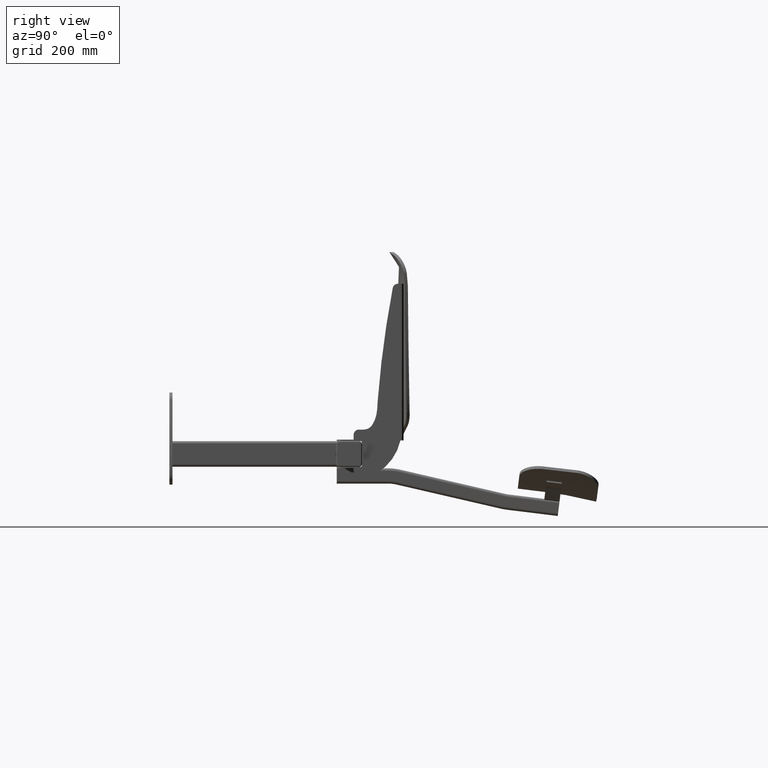
[diagram: clean part render]
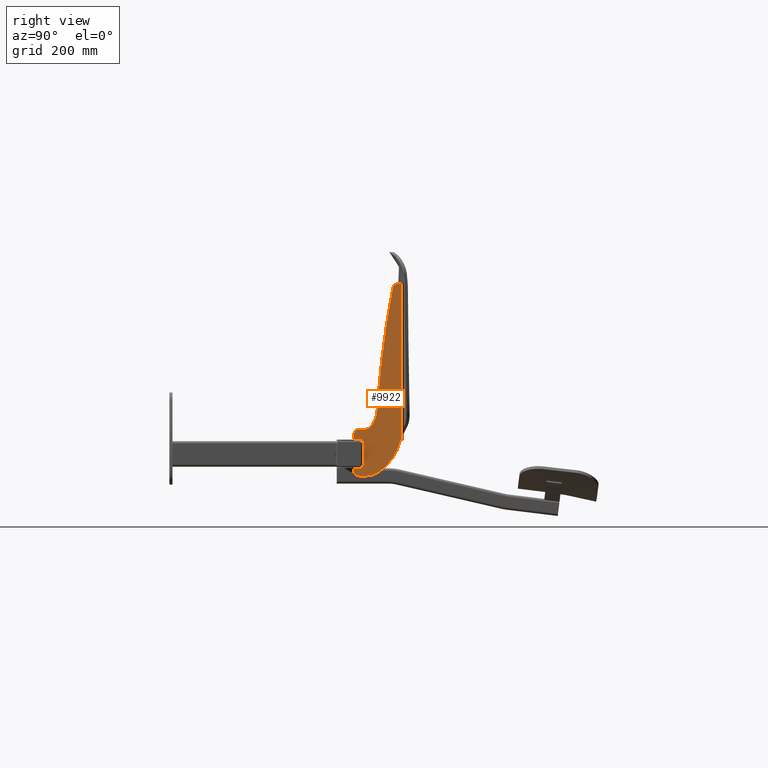
[diagram: same view with one face highlighted and labeled with its STEP entity id]
A machine part, right view. The second image highlights one B-rep face of the part: STEP entity #9922.
In plain terms, the highlighted planar face has unit normal (1, 0, 0).
Its self-contained STEP definition (entity closure, byte-faithful):
#3565 = AXIS2_PLACEMENT_3D ( 'NONE', #15884, #15888, #15889 ) ;
#3684 = FACE_OUTER_BOUND ( 'NONE', #19537, .T. ) ;
#3911 = CARTESIAN_POINT ( 'NONE',  ( 188.5000000000000000, 768.8487700016353300, 42.09000911109884400 ) ) ;
#3912 = DIRECTION ( 'NONE',  ( 1.000000000000000000, -0.0000000000000000000, -0.0000000000000000000 ) ) ;
#3913 = DIRECTION ( 'NONE',  ( 0.0000000000000000000, 0.0000000000000000000, 1.000000000000000000 ) ) ;
#3920 = CARTESIAN_POINT ( 'NONE',  ( 188.5000000000000000, 1965.136893570438800, -52.22184278584374100 ) ) ;
#3921 = DIRECTION ( 'NONE',  ( -1.000000000000000000, 0.0000000000000000000, 0.0000000000000000000 ) ) ;
#3922 = DIRECTION ( 'NONE',  ( 0.0000000000000000000, 0.0000000000000000000, -1.000000000000000000 ) ) ;
#3923 = DIRECTION ( 'NONE',  ( 0.0000000000000000000, -1.000000000000000000, 0.0000000000000000000 ) ) ;
#3924 = CARTESIAN_POINT ( 'NONE',  ( 188.5000000000000000, -94.90603982662021600, 88.48643675972323300 ) ) ;
#3925 = DIRECTION ( 'NONE',  ( 1.000000000000000000, -0.0000000000000000000, -0.0000000000000000000 ) ) ;
#3926 = DIRECTION ( 'NONE',  ( 0.0000000000000000000, 0.0000000000000000000, -1.000000000000000000 ) ) ;
#3928 = CARTESIAN_POINT ( 'NONE',  ( 188.5000000000000000, 17.99999999999996100, 330.0000000000000000 ) ) ;
#3929 = CARTESIAN_POINT ( 'NONE',  ( 188.5000000000000000, 10.25815059093826400, 320.0000000000000000 ) ) ;
#3930 = DIRECTION ( 'NONE',  ( -1.000000000000000000, -0.0000000000000000000, -0.0000000000000000000 ) ) ;
#3931 = DIRECTION ( 'NONE',  ( 0.0000000000000000000, 0.0000000000000000000, 1.000000000000000000 ) ) ;
#3997 = CARTESIAN_POINT ( 'NONE',  ( 188.5000000000000000, -76.00000000000001400, 35.00000000000000700 ) ) ;
#3999 = CARTESIAN_POINT ( 'NONE',  ( 188.5000000000000000, 10.25815059093826400, 330.0000000000000000 ) ) ;
#4000 = CARTESIAN_POINT ( 'NONE',  ( 188.5000000000000000, -56.52131254699094100, 45.00000000000002100 ) ) ;
#4001 = CARTESIAN_POINT ( 'NONE',  ( 188.5000000000000000, -62.00000000000000000, -30.49999999999999300 ) ) ;
#4003 = CARTESIAN_POINT ( 'NONE',  ( 188.5000000000000000, -56.99999999999999300, 20.50000000000000400 ) ) ;
#4155 = CARTESIAN_POINT ( 'NONE',  ( 188.5000000000000000, -66.00000000000000000, -45.49999999999999300 ) ) ;
#4156 = CARTESIAN_POINT ( 'NONE',  ( 188.5000000000000000, -50.76586166187402700, -45.49999999999999300 ) ) ;
#4158 = CARTESIAN_POINT ( 'NONE',  ( 188.5000000000000000, 15.49999999999940300, 24.00000000000002100 ) ) ;
#4159 = CARTESIAN_POINT ( 'NONE',  ( 188.5000000000000000, -29.85772430000088900, -39.60058345625546400 ) ) ;
#4161 = CARTESIAN_POINT ( 'NONE',  ( 188.5000000000000000, -76.00000000000001400, -35.49999999999999300 ) ) ;
#4162 = CARTESIAN_POINT ( 'NONE',  ( 188.5000000000000000, -76.00000000000001400, -30.49999999999998900 ) ) ;
#4166 = CARTESIAN_POINT ( 'NONE',  ( 188.5000000000000000, 16.51392966436116100, 24.00000000000002100 ) ) ;
#5923 = EDGE_CURVE ( 'NONE', #17981, #17968, #13217, .T. ) ;
#5924 = EDGE_CURVE ( 'NONE', #17977, #17981, #13219, .T. ) ;
#5925 = EDGE_CURVE ( 'NONE', #17978, #17977, #13216, .T. ) ;
#5926 = EDGE_CURVE ( 'NONE', #17974, #17978, #13220, .T. ) ;
#5927 = EDGE_CURVE ( 'NONE', #17966, #17974, #13222, .T. ) ;
#5928 = EDGE_CURVE ( 'NONE', #17984, #17966, #13223, .T. ) ;
#5929 = EDGE_CURVE ( 'NONE', #17973, #17984, #13225, .T. ) ;
#5960 = EDGE_CURVE ( 'NONE', #17967, #17976, #13271, .T. ) ;
#5963 = EDGE_CURVE ( 'NONE', #17967, #17971, #13275, .T. ) ;
#5964 = EDGE_CURVE ( 'NONE', #17968, #17976, #13278, .T. ) ;
#5965 = EDGE_CURVE ( 'NONE', #17971, #17980, #13279, .T. ) ;
#5966 = EDGE_CURVE ( 'NONE', #17970, #17980, #13277, .T. ) ;
#6038 = EDGE_CURVE ( 'NONE', #19449, #19457, #13875, .T. ) ;
#6039 = EDGE_CURVE ( 'NONE', #17970, #19457, #13877, .T. ) ;
#6204 = CARTESIAN_POINT ( 'NONE',  ( 188.5000000000000000, -44.99999999999998600, 24.00000000000002100 ) ) ;
#6205 = DIRECTION ( 'NONE',  ( 0.0000000000000000000, 1.000000000000000000, 0.0000000000000000000 ) ) ;
#6206 = CARTESIAN_POINT ( 'NONE',  ( 188.5000000000000000, 16.51392966436116100, 24.00000000000002100 ) ) ;
#6207 = DIRECTION ( 'NONE',  ( -0.0000000000000000000, -0.0000000000000000000, -1.000000000000000000 ) ) ;
#7919 = AXIS2_PLACEMENT_3D ( 'NONE', #10311, #10312, #10313 ) ;
#7921 = AXIS2_PLACEMENT_3D ( 'NONE', #10317, #10318, #10319 ) ;
#7923 = AXIS2_PLACEMENT_3D ( 'NONE', #10324, #10325, #10326 ) ;
#7949 = AXIS2_PLACEMENT_3D ( 'NONE', #3911, #3912, #3913 ) ;
#7954 = AXIS2_PLACEMENT_3D ( 'NONE', #3920, #3921, #3922 ) ;
#7955 = AXIS2_PLACEMENT_3D ( 'NONE', #3924, #3925, #3926 ) ;
#7956 = AXIS2_PLACEMENT_3D ( 'NONE', #3929, #3930, #3931 ) ;
#8554 = CARTESIAN_POINT ( 'NONE',  ( 188.5000000000000000, -56.99999999999999300, -25.49999999999999300 ) ) ;
#8555 = CARTESIAN_POINT ( 'NONE',  ( 188.5000000000000000, 0.4346393196845710300, 321.8704615215368700 ) ) ;
#8566 = CARTESIAN_POINT ( 'NONE',  ( 188.5000000000000000, -62.00000000000000000, 25.50000000000000400 ) ) ;
#8569 = CARTESIAN_POINT ( 'NONE',  ( 188.5000000000000000, -28.67664571090134000, 104.9645770423939800 ) ) ;
#8570 = CARTESIAN_POINT ( 'NONE',  ( 188.5000000000000000, -39.46143375604454900, 54.56158366234524200 ) ) ;
#8571 = CARTESIAN_POINT ( 'NONE',  ( 188.5000000000000000, 16.51392966436116100, 330.0000000000000000 ) ) ;
#8573 = CARTESIAN_POINT ( 'NONE',  ( 188.5000000000000000, -76.00000000000001400, 25.50000000000000700 ) ) ;
#8575 = CARTESIAN_POINT ( 'NONE',  ( 188.5000000000000000, -29.99960903027743000, 85.00000000000001400 ) ) ;
#8576 = CARTESIAN_POINT ( 'NONE',  ( 188.5000000000000000, -66.00000000000000000, 45.00000000000001400 ) ) ;
#8796 = EDGE_CURVE ( 'NONE', #17982, #17973, #13614, .T. ) ;
#8797 = EDGE_CURVE ( 'NONE', #19453, #17982, #13609, .T. ) ;
#8798 = EDGE_CURVE ( 'NONE', #19452, #19453, #13617, .T. ) ;
#8799 = EDGE_CURVE ( 'NONE', #19446, #19452, #13619, .T. ) ;
#8800 = EDGE_CURVE ( 'NONE', #19447, #19446, #13621, .T. ) ;
#8801 = EDGE_CURVE ( 'NONE', #19450, #19447, #13622, .T. ) ;
#8802 = EDGE_CURVE ( 'NONE', #19449, #19450, #13624, .T. ) ;
#9922 = ADVANCED_FACE ( 'NONE', ( #3684 ), #15886, .T. ) ;
#10305 = CARTESIAN_POINT ( 'NONE',  ( 188.5000000000000000, -76.00000000000001400, 45.00000000000001400 ) ) ;
#10306 = DIRECTION ( 'NONE',  ( 0.0000000000000000000, 1.000000000000000000, 2.359788892426816400E-016 ) ) ;
#10311 = CARTESIAN_POINT ( 'NONE',  ( 188.5000000000000000, -56.52131254699094100, 65.00000000000002800 ) ) ;
#10312 = DIRECTION ( 'NONE',  ( 1.000000000000000000, 0.0000000000000000000, 0.0000000000000000000 ) ) ;
#10313 = DIRECTION ( 'NONE',  ( 0.0000000000000000000, -1.734723475976806700E-015, 1.000000000000000000 ) ) ;
#10314 = DIRECTION ( 'NONE',  ( 0.0000000000000000000, 0.0000000000000000000, 1.000000000000000000 ) ) ;
#10315 = CARTESIAN_POINT ( 'NONE',  ( 188.5000000000000000, -76.00000000000001400, 25.50000000000000700 ) ) ;
#10316 = CARTESIAN_POINT ( 'NONE',  ( 188.5000000000000000, -76.00000000000001400, 25.50000000000000700 ) ) ;
#10317 = CARTESIAN_POINT ( 'NONE',  ( 188.5000000000000000, -66.00000000000000000, 35.00000000000000700 ) ) ;
#10318 = DIRECTION ( 'NONE',  ( -1.000000000000000000, -0.0000000000000000000, -0.0000000000000000000 ) ) ;
#10319 = DIRECTION ( 'NONE',  ( 0.0000000000000000000, 0.0000000000000000000, 1.000000000000000000 ) ) ;
#10320 = DIRECTION ( 'NONE',  ( 0.0000000000000000000, -1.000000000000000000, 1.826024711554535900E-016 ) ) ;
#10321 = DIRECTION ( 'NONE',  ( 0.0000000000000000000, 0.0000000000000000000, 1.000000000000000000 ) ) ;
#10323 = CARTESIAN_POINT ( 'NONE',  ( 188.5000000000000000, -56.99999999999999300, 25.50000000000000400 ) ) ;
#10324 = CARTESIAN_POINT ( 'NONE',  ( 188.5000000000000000, -62.00000000000000000, 20.50000000000000400 ) ) ;
#10325 = DIRECTION ( 'NONE',  ( 1.000000000000000000, 0.0000000000000000000, 0.0000000000000000000 ) ) ;
#10326 = DIRECTION ( 'NONE',  ( 0.0000000000000000000, 0.0000000000000000000, 1.000000000000000000 ) ) ;
#11839 = DIRECTION ( 'NONE',  ( 0.0000000000000000000, 1.000000000000000000, -3.652049423109068300E-016 ) ) ;
#11843 = DIRECTION ( 'NONE',  ( 0.0000000000000000000, -1.000000000000000000, -0.0000000000000000000 ) ) ;
#11844 = CARTESIAN_POINT ( 'NONE',  ( 188.5000000000000000, -76.00000000000001400, -45.49999999999999300 ) ) ;
#11845 = CARTESIAN_POINT ( 'NONE',  ( 188.5000000000000000, -56.99999999999999300, -30.49999999999999600 ) ) ;
#11846 = CARTESIAN_POINT ( 'NONE',  ( 188.5000000000000000, -62.00000000000000000, -25.49999999999999300 ) ) ;
#11847 = DIRECTION ( 'NONE',  ( 1.000000000000000000, 0.0000000000000000000, 0.0000000000000000000 ) ) ;
#11848 = DIRECTION ( 'NONE',  ( 0.0000000000000000000, 0.0000000000000000000, 1.000000000000000000 ) ) ;
#11849 = CARTESIAN_POINT ( 'NONE',  ( 188.5000000000000000, -76.00000000000001400, -30.49999999999998900 ) ) ;
#11850 = DIRECTION ( 'NONE',  ( 0.0000000000000000000, 0.0000000000000000000, 1.000000000000000000 ) ) ;
#11851 = CARTESIAN_POINT ( 'NONE',  ( 188.5000000000000000, -66.00000000000000000, -35.49999999999999300 ) ) ;
#11852 = DIRECTION ( 'NONE',  ( -1.000000000000000000, -0.0000000000000000000, -0.0000000000000000000 ) ) ;
#11853 = DIRECTION ( 'NONE',  ( 0.0000000000000000000, 0.0000000000000000000, 1.000000000000000000 ) ) ;
#11855 = CARTESIAN_POINT ( 'NONE',  ( 188.5000000000000000, -50.76586166187402700, -5.499999999999991100 ) ) ;
#11856 = DIRECTION ( 'NONE',  ( -1.000000000000000000, -0.0000000000000000000, -0.0000000000000000000 ) ) ;
#11857 = DIRECTION ( 'NONE',  ( 0.0000000000000000000, 0.0000000000000000000, 1.000000000000000000 ) ) ;
#11859 = CARTESIAN_POINT ( 'NONE',  ( 188.5000000000000000, -82.12806770468355900, 45.65087518438299700 ) ) ;
#11860 = DIRECTION ( 'NONE',  ( -1.000000000000000000, -0.0000000000000000000, -0.0000000000000000000 ) ) ;
#11861 = DIRECTION ( 'NONE',  ( 0.0000000000000000000, 0.0000000000000000000, 1.000000000000000000 ) ) ;
#13216 = CIRCLE ( 'NONE', #7921, 10.00000000000000200 ) ;
#13217 = CIRCLE ( 'NONE', #7919, 20.00000000000000400 ) ;
#13219 = LINE ( 'NONE', #10305, #13221 ) ;
#13220 = LINE ( 'NONE', #10316, #13224 ) ;
#13221 = VECTOR ( 'NONE', #10306, 1000.000000000000000 ) ;
#13222 = LINE ( 'NONE', #10315, #13226 ) ;
#13223 = CIRCLE ( 'NONE', #7923, 5.000000000000000900 ) ;
#13224 = VECTOR ( 'NONE', #10314, 1000.000000000000000 ) ;
#13225 = LINE ( 'NONE', #10323, #13229 ) ;
#13226 = VECTOR ( 'NONE', #10320, 1000.000000000000000 ) ;
#13229 = VECTOR ( 'NONE', #10321, 1000.000000000000000 ) ;
#13271 = CIRCLE ( 'NONE', #7949, 800.0000000000000000 ) ;
#13275 = CIRCLE ( 'NONE', #7954, 2000.000000000000000 ) ;
#13277 = LINE ( 'NONE', #3928, #13282 ) ;
#13278 = CIRCLE ( 'NONE', #7955, 64.99999999999991500 ) ;
#13279 = CIRCLE ( 'NONE', #7956, 10.00000000000000900 ) ;
#13282 = VECTOR ( 'NONE', #3923, 1000.000000000000000 ) ;
#13609 = LINE ( 'NONE', #11845, #13618 ) ;
#13614 = CIRCLE ( 'NONE', #18351, 5.000000000000000900 ) ;
#13617 = LINE ( 'NONE', #11849, #13620 ) ;
#13618 = VECTOR ( 'NONE', #11839, 1000.000000000000000 ) ;
#13619 = CIRCLE ( 'NONE', #18352, 10.00000000000000200 ) ;
#13620 = VECTOR ( 'NONE', #11850, 1000.000000000000000 ) ;
#13621 = LINE ( 'NONE', #11844, #13623 ) ;
#13622 = CIRCLE ( 'NONE', #18353, 40.00000000000000000 ) ;
#13623 = VECTOR ( 'NONE', #11843, 1000.000000000000000 ) ;
#13624 = CIRCLE ( 'NONE', #18354, 99.99999999999973000 ) ;
#13875 = LINE ( 'NONE', #6204, #13878 ) ;
#13877 = LINE ( 'NONE', #6206, #13880 ) ;
#13878 = VECTOR ( 'NONE', #6205, 1000.000000000000000 ) ;
#13880 = VECTOR ( 'NONE', #6207, 1000.000000000000000 ) ;
#15884 = CARTESIAN_POINT ( 'NONE',  ( 188.5000000000000000, 768.8487700016353300, 42.09000911109884400 ) ) ;
#15886 = PLANE ( 'NONE',  #3565 ) ;
#15888 = DIRECTION ( 'NONE',  ( 1.000000000000000000, 0.0000000000000000000, -0.0000000000000000000 ) ) ;
#15889 = DIRECTION ( 'NONE',  ( 0.0000000000000000000, 0.0000000000000000000, 1.000000000000000000 ) ) ;
#17966 = VERTEX_POINT ( 'NONE', #8566 ) ;
#17967 = VERTEX_POINT ( 'NONE', #8569 ) ;
#17968 = VERTEX_POINT ( 'NONE', #8570 ) ;
#17970 = VERTEX_POINT ( 'NONE', #8571 ) ;
#17971 = VERTEX_POINT ( 'NONE', #8555 ) ;
#17973 = VERTEX_POINT ( 'NONE', #8554 ) ;
#17974 = VERTEX_POINT ( 'NONE', #8573 ) ;
#17976 = VERTEX_POINT ( 'NONE', #8575 ) ;
#17977 = VERTEX_POINT ( 'NONE', #8576 ) ;
#17978 = VERTEX_POINT ( 'NONE', #3997 ) ;
#17980 = VERTEX_POINT ( 'NONE', #3999 ) ;
#17981 = VERTEX_POINT ( 'NONE', #4000 ) ;
#17982 = VERTEX_POINT ( 'NONE', #4001 ) ;
#17984 = VERTEX_POINT ( 'NONE', #4003 ) ;
#17993 = ORIENTED_EDGE ( 'NONE', *, *, #6039, .F. ) ;
#17994 = ORIENTED_EDGE ( 'NONE', *, *, #6038, .T. ) ;
#18000 = ORIENTED_EDGE ( 'NONE', *, *, #8796, .F. ) ;
#18001 = ORIENTED_EDGE ( 'NONE', *, *, #5928, .F. ) ;
#18006 = ORIENTED_EDGE ( 'NONE', *, *, #8801, .F. ) ;
#18007 = ORIENTED_EDGE ( 'NONE', *, *, #8799, .F. ) ;
#18009 = ORIENTED_EDGE ( 'NONE', *, *, #8802, .F. ) ;
#18013 = ORIENTED_EDGE ( 'NONE', *, *, #8798, .F. ) ;
#18014 = ORIENTED_EDGE ( 'NONE', *, *, #5966, .T. ) ;
#18015 = ORIENTED_EDGE ( 'NONE', *, *, #5927, .F. ) ;
#18016 = ORIENTED_EDGE ( 'NONE', *, *, #5924, .F. ) ;
#18017 = ORIENTED_EDGE ( 'NONE', *, *, #5965, .F. ) ;
#18018 = ORIENTED_EDGE ( 'NONE', *, *, #5923, .F. ) ;
#18020 = ORIENTED_EDGE ( 'NONE', *, *, #5925, .F. ) ;
#18021 = ORIENTED_EDGE ( 'NONE', *, *, #5960, .T. ) ;
#18022 = ORIENTED_EDGE ( 'NONE', *, *, #8800, .F. ) ;
#18025 = ORIENTED_EDGE ( 'NONE', *, *, #5926, .F. ) ;
#18026 = ORIENTED_EDGE ( 'NONE', *, *, #8797, .F. ) ;
#18029 = ORIENTED_EDGE ( 'NONE', *, *, #5963, .F. ) ;
#18030 = ORIENTED_EDGE ( 'NONE', *, *, #5964, .F. ) ;
#18031 = ORIENTED_EDGE ( 'NONE', *, *, #5929, .F. ) ;
#18351 = AXIS2_PLACEMENT_3D ( 'NONE', #11846, #11847, #11848 ) ;
#18352 = AXIS2_PLACEMENT_3D ( 'NONE', #11851, #11852, #11853 ) ;
#18353 = AXIS2_PLACEMENT_3D ( 'NONE', #11855, #11856, #11857 ) ;
#18354 = AXIS2_PLACEMENT_3D ( 'NONE', #11859, #11860, #11861 ) ;
#19446 = VERTEX_POINT ( 'NONE', #4155 ) ;
#19447 = VERTEX_POINT ( 'NONE', #4156 ) ;
#19449 = VERTEX_POINT ( 'NONE', #4158 ) ;
#19450 = VERTEX_POINT ( 'NONE', #4159 ) ;
#19452 = VERTEX_POINT ( 'NONE', #4161 ) ;
#19453 = VERTEX_POINT ( 'NONE', #4162 ) ;
#19457 = VERTEX_POINT ( 'NONE', #4166 ) ;
#19537 = EDGE_LOOP ( 'NONE', ( #18014, #18017, #18029, #18021, #18030, #18018, #18016, #18020, #18025, #18015, #18001, #18031, #18000, #18026, #18013, #18007, #18022, #18006, #18009, #17994, #17993 ) ) ;